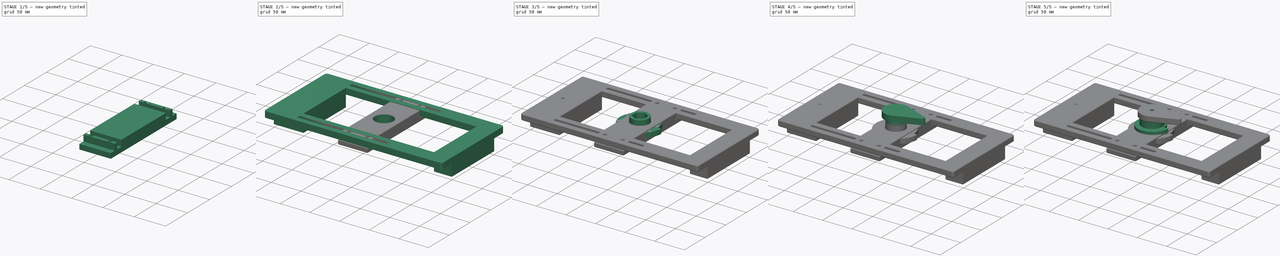
[diagram: build sequence overview — one tinted view per stage of 5, left to right]
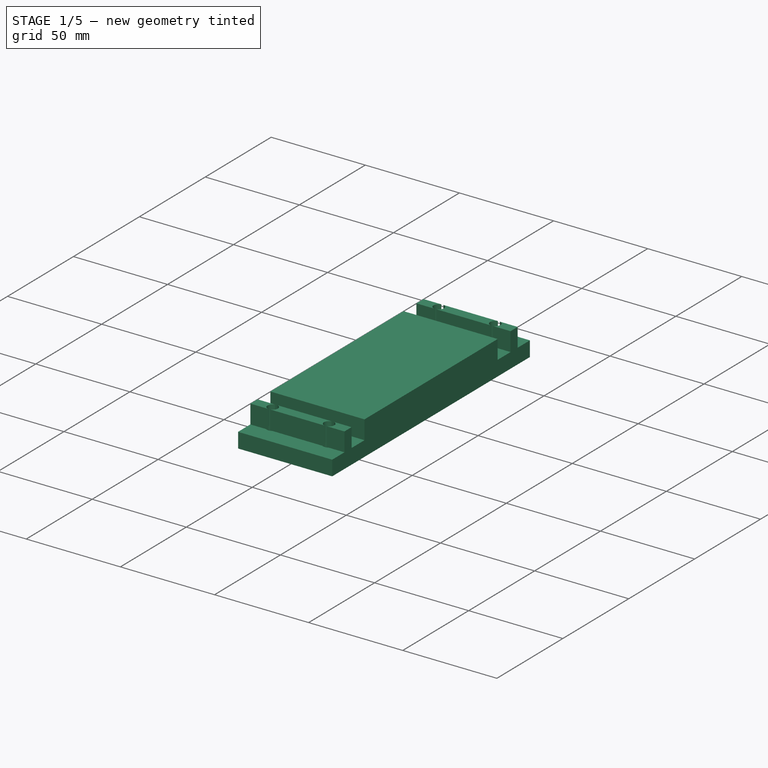
[diagram: stage 1 of 5 — iso view after this stage's code; geometry added in this stage tinted green]
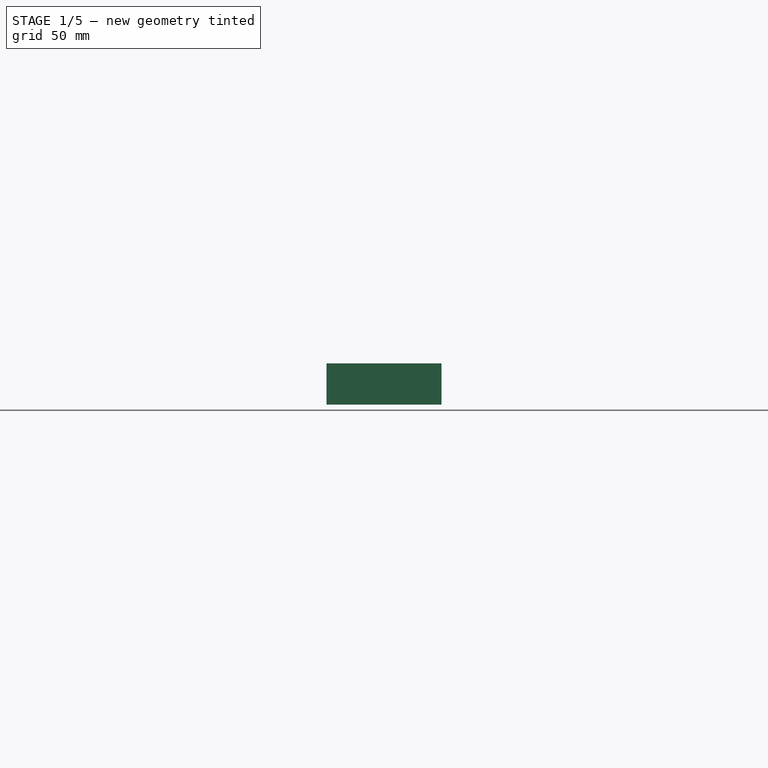
[diagram: stage 1 of 5 — front view after this stage's code; geometry added in this stage tinted green]
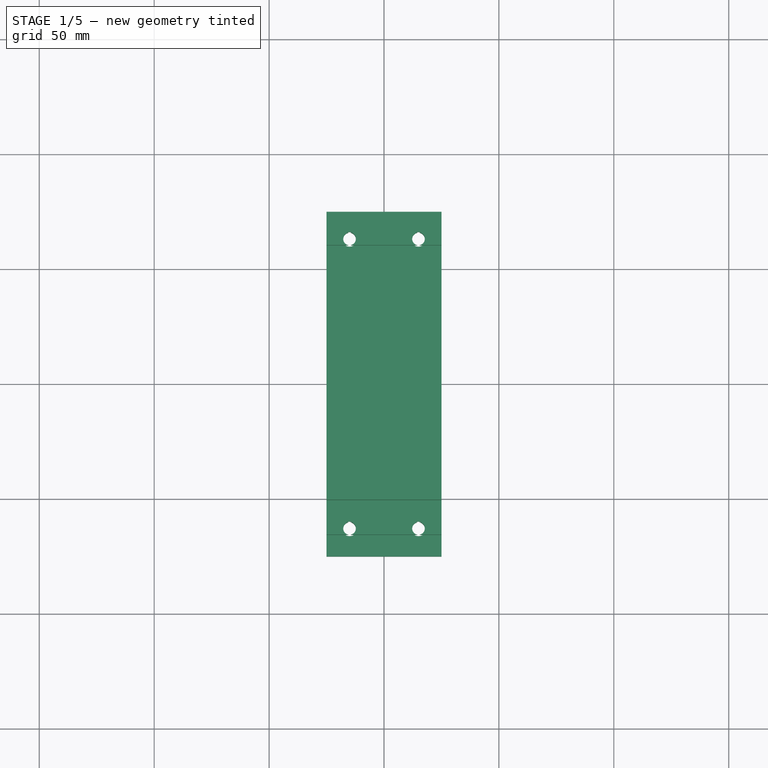
[diagram: stage 1 of 5 — top view after this stage's code; geometry added in this stage tinted green]
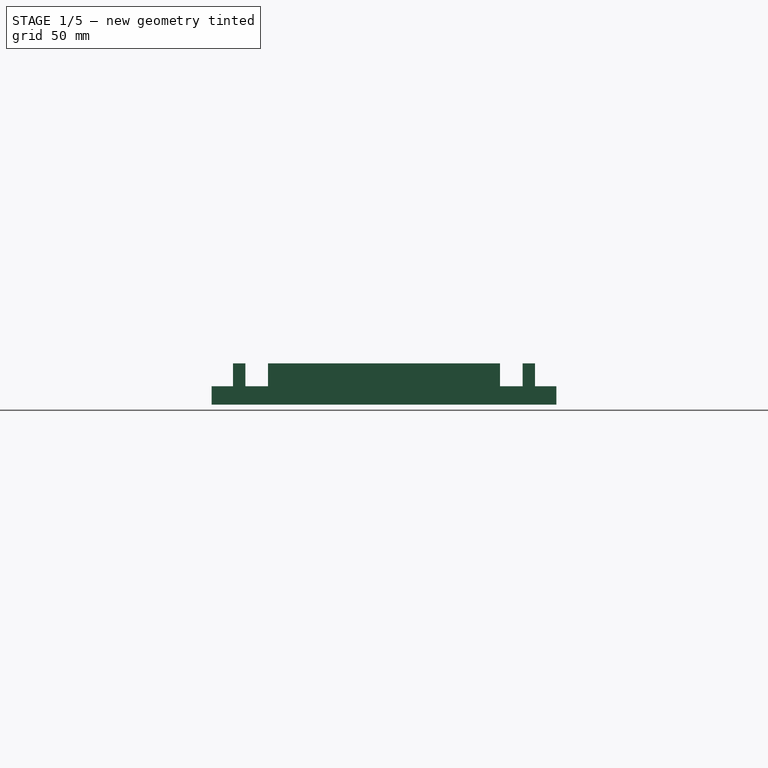
[diagram: stage 1 of 5 — right view after this stage's code; geometry added in this stage tinted green]
FCSTD DOCUMENT  (FreeCAD 0.22R36117 (Git))
Label: cam
License: All rights reserved
LicenseURL: http://en.wikipedia.org/wiki/All_rights_reserved
objects: Sketcher::SketchObject×18, PartDesign::Pad×11, PartDesign::Body×5, PartDesign::Pocket×5, PartDesign::Chamfer×3, PartDesign::Hole×1
note: 63 computed .brp shape members not serialized (recipe doc carries the construction recipe); baked Part::Feature solids carry a one-line shape summary decoded from their .brp

FEATURE [Sketcher::SketchObject] Sketch013
  AttachmentOffset = pos=(0,0,-8) rot=(0,0,1;0rad)
  FullyConstrained = true
  MapMode = 5
  Placement = pos=(0,0,-8) rot=(0,0,1;0rad)
  Support = -> [XY_Plane004]
  sketch-geometry (4):
    g0: LineSegment StartX=-25 StartY=75 StartZ=0 EndX=-25 EndY=-75 EndZ=0
    g1: LineSegment StartX=-25 StartY=-75 StartZ=0 EndX=25 EndY=-75 EndZ=0
    g2: LineSegment StartX=25 StartY=-75 StartZ=0 EndX=25 EndY=75 EndZ=0
    g3: LineSegment StartX=25 StartY=75 StartZ=0 EndX=-25 EndY=75 EndZ=0
  constraints (10):
    c: Coincident(g0,g1)
    c: Coincident(g1,g2)
    c: Coincident(g2,g3)
    c: Coincident(g3,g0)
    c: Vertical(g2)
    c: Horizontal(g1)
    c: Symmetric(g0,g0,g-1)
    c: DistanceY(g0,g0) = 150
    c: DistanceX(g3,g3) = 50
    c: Symmetric(g0,g2,g-2)
FEATURE [PartDesign::Pad] Pad008
  Direction = (0,0,1)
  Length = 8
  Length2 = 10
  Profile = -> Sketch013
  ReferenceAxis = -> Sketch013 [N_Axis]
  Suppressed = false
  Type = 0
FEATURE [Sketcher::SketchObject] Sketch014
  ExternalGeometry = -> [Pad008]
  FullyConstrained = true
  MapMode = 5
  Support = -> [XY_Plane004]
  sketch-geometry (13):
    g0: LineSegment StartX=-25 StartY=65.7 StartZ=0 EndX=-25 EndY=60.3 EndZ=0
    g1: LineSegment StartX=-25 StartY=60.3 StartZ=0 EndX=25 EndY=60.3 EndZ=0
    g2: LineSegment StartX=25 StartY=60.3 StartZ=0 EndX=25 EndY=65.7 EndZ=0
    g3: LineSegment StartX=25 StartY=65.7 StartZ=0 EndX=-25 EndY=65.7 EndZ=0
    g4: LineSegment StartX=-25 StartY=-60.3 StartZ=0 EndX=-25 EndY=-65.7 EndZ=0
    g5: LineSegment StartX=-25 StartY=-65.7 StartZ=0 EndX=25 EndY=-65.7 EndZ=0
    g6: LineSegment StartX=25 StartY=-65.7 StartZ=0 EndX=25 EndY=-60.3 EndZ=0
    g7: LineSegment StartX=25 StartY=-60.3 StartZ=0 EndX=-25 EndY=-60.3 EndZ=0
    g8: LineSegment StartX=-25 StartY=50.5 StartZ=0 EndX=-25 EndY=-50.5 EndZ=0
    g9: LineSegment StartX=-25 StartY=-50.5 StartZ=0 EndX=25 EndY=-50.5 EndZ=0
    g10: LineSegment StartX=25 StartY=-50.5 StartZ=0 EndX=25 EndY=50.5 EndZ=0
    g11: LineSegment StartX=25 StartY=50.5 StartZ=0 EndX=-25 EndY=50.5 EndZ=0
    g12: GeomPoint X=25 Y=-63 Z=0
  constraints (35):
    c: Coincident(g0,g1)
    c: Coincident(g1,g2)
    c: Coincident(g2,g3)
    c: Coincident(g3,g0)
    c: Vertical(g0)
    c: Vertical(g2)
    c: Horizontal(g1)
    c: Horizontal(g3)
    c: Coincident(g4,g5)
    c: Coincident(g5,g6)
    c: Coincident(g6,g7)
    c: Coincident(g7,g4)
    c: Vertical(g4)
    c: Vertical(g6)
    c: Horizontal(g5)
    c: Horizontal(g7)
    c: Equal(g1,g7)
    c: Equal(g6,g2)
    c: Coincident(g8,g9)
    c: Coincident(g9,g10)
    c: Coincident(g10,g11)
    c: Coincident(g11,g8)
    c: Vertical(g8)
    c: Horizontal(g9)
    c: Horizontal(g11)
    c: Vertical(g9,g6)
    c: Vertical(g8,g4)
    c: Symmetric(g6,g1,g-1)
    c: Symmetric(g10,g9,g-1)
    c: DistanceY(g6,g6) = 5.4
    c: Symmetric(g6,g5,g12)
    c: DistanceY(g12,g-1) = 63
    c: DistanceY(g10,g10) = 101
    c: Vertical(g8,g-3)
    c: Vertical(g2,g-4)
FEATURE [PartDesign::Pad] Pad009
  BaseFeature = -> Pad008
  Direction = (0,0,1)
  Length = 10
  Length2 = 10
  Profile = -> Sketch014
  ReferenceAxis = -> Sketch014 [N_Axis]
  Suppressed = false
  Type = 0
FEATURE [Sketcher::SketchObject] Sketch015
  ExternalGeometry = -> [Pad009]
  FullyConstrained = true
  MapMode = 5
  Placement = pos=(0,0,10) rot=(0,0,1;0rad)
  Support = -> [Pad009]
  sketch-geometry (9):
    g0: LineSegment StartX=-15 StartY=63 StartZ=0 EndX=-15 EndY=-63 EndZ=0
    g1: LineSegment StartX=-15 StartY=-63 StartZ=0 EndX=15 EndY=-63 EndZ=0
    g2: LineSegment StartX=15 StartY=-63 StartZ=0 EndX=15 EndY=63 EndZ=0
    g3: LineSegment StartX=15 StartY=63 StartZ=0 EndX=-15 EndY=63 EndZ=0
    g4: GeomPoint X=25 Y=63 Z=0
    g5: Circle CenterX=-15 CenterY=63 CenterZ=0 NormalX=0 NormalY=0 NormalZ=1 AngleXU=0 Radius=2.75
    g6: Circle CenterX=15 CenterY=63 CenterZ=0 NormalX=0 NormalY=0 NormalZ=1 AngleXU=0 Radius=2.75
    g7: Circle CenterX=-15 CenterY=-63 CenterZ=0 NormalX=0 NormalY=0 NormalZ=1 AngleXU=0 Radius=2.75
    g8: Circle CenterX=15 CenterY=-63 CenterZ=0 NormalX=0 NormalY=0 NormalZ=1 AngleXU=0 Radius=2.75
  constraints (20):
    c: Coincident(g0,g1)
    c: Coincident(g1,g2)
    c: Coincident(g2,g3)
    c: Coincident(g3,g0)
    c: Vertical(g0)
    c: Horizontal(g1)
    c: Horizontal(g3)
    c: Symmetric(g1,g2,g-1)
    c: Symmetric(g-5,g-4,g4)
    c: Horizontal(g2,g4)
    c: DistanceX(g2,g-5) = 10
    c: DistanceX(g-4,g0) = 10
    c: Equal(g5,g6)
    c: Equal(g5,g7)
    c: Equal(g5,g8)
    c: Diameter(g5) = 5.5
    c: Coincident(g5,g0)
    c: Coincident(g6,g2)
    c: Coincident(g8,g1)
    c: Coincident(g7,g0)
FEATURE [PartDesign::Pocket] Pocket003
  BaseFeature = -> Pad009
  Direction = (0,0,-1)
  Length = 5
  Length2 = 5
  Profile = -> Sketch015
  ReferenceAxis = -> Sketch015 [N_Axis]
  Suppressed = false
  Type = 1
FEATURE [Sketcher::SketchObject] Sketch016
  ExternalGeometry = -> [Pocket003]
  FullyConstrained = true
  MapMode = 5
  Placement = pos=(0,0,-8) rot=(1,0,0;3.14159rad)
  Support = -> [Pocket003]
  sketch-geometry (4):
    g0: Circle CenterX=-15 CenterY=-63 CenterZ=0 NormalX=0 NormalY=0 NormalZ=1 AngleXU=0 Radius=3.2
    g1: Circle CenterX=15 CenterY=-63 CenterZ=0 NormalX=0 NormalY=0 NormalZ=1 AngleXU=0 Radius=3.2
    g2: Circle CenterX=15 CenterY=63 CenterZ=0 NormalX=0 NormalY=0 NormalZ=1 AngleXU=0 Radius=3.2
    g3: Circle CenterX=-15 CenterY=63 CenterZ=0 NormalX=0 NormalY=0 NormalZ=1 AngleXU=0 Radius=3.2
  constraints (12):
    c: Coincident(g0,g-6)
    c: Coincident(g1,g-5)
    c: Coincident(g2,g-4)
    c: Coincident(g3,g-3)
    c: Diameter(g-6) = 5.5
    c: Diameter(g-5) = 5.5
    c: Diameter(g-4) = 5.5
    c: Diameter(g-3) = 5.5
    c: Equal(g0,g1)
    c: Equal(g0,g2)
    c: Equal(g0,g3)
    c: Diameter(g0) = 6.4
FEATURE [PartDesign::Pocket] Pocket004
  BaseFeature = -> Pocket003
  Direction = (0,0,1)
  Length = 0
  Length2 = 5
  Profile = -> Sketch016
  ReferenceAxis = -> Sketch016 [N_Axis]
  Suppressed = false
  Type = 3
  UpToFace = -> Pocket003 [Face5]
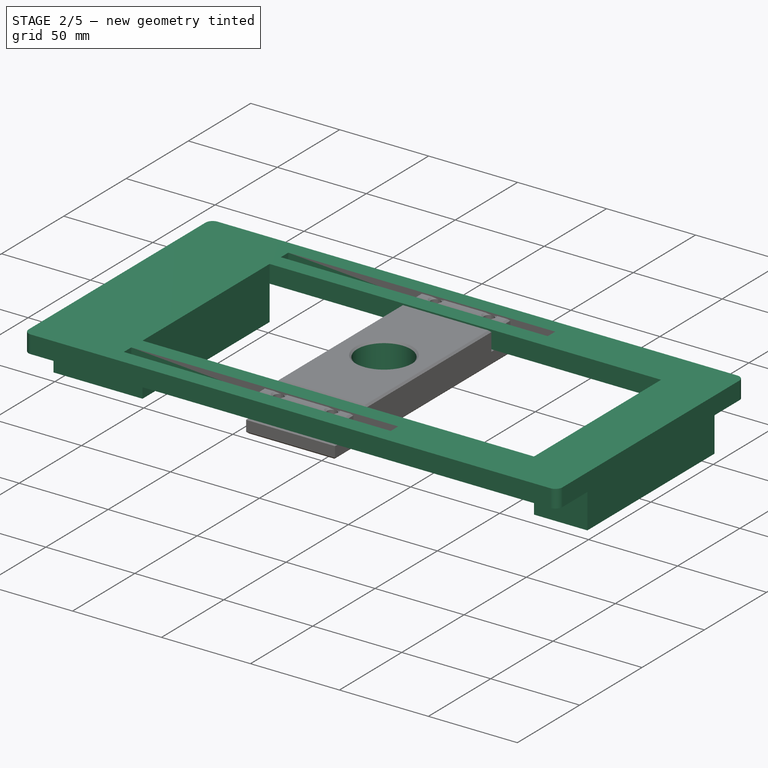
[diagram: stage 2 of 5 — iso view after this stage's code; geometry added in this stage tinted green]
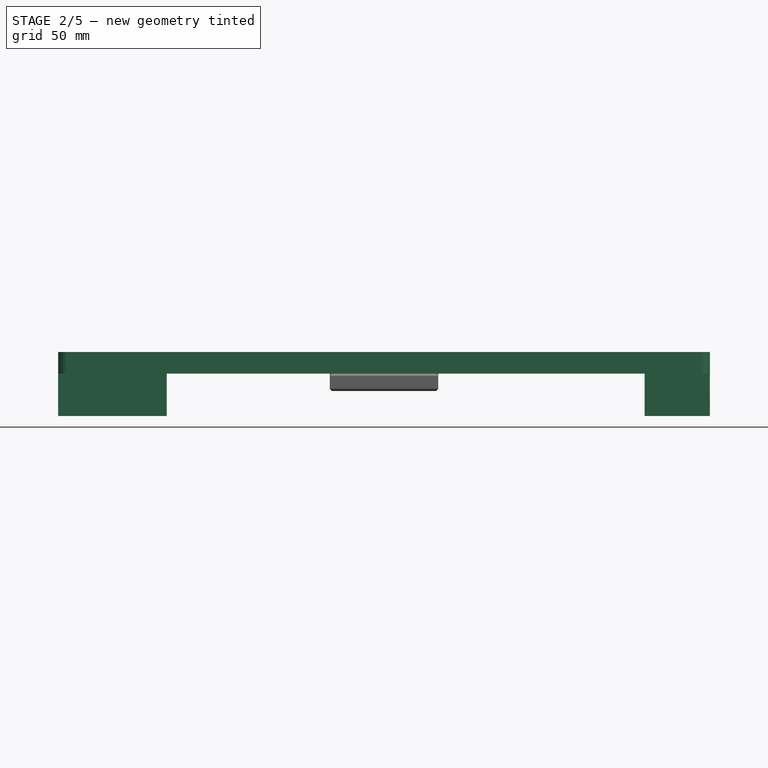
[diagram: stage 2 of 5 — front view after this stage's code; geometry added in this stage tinted green]
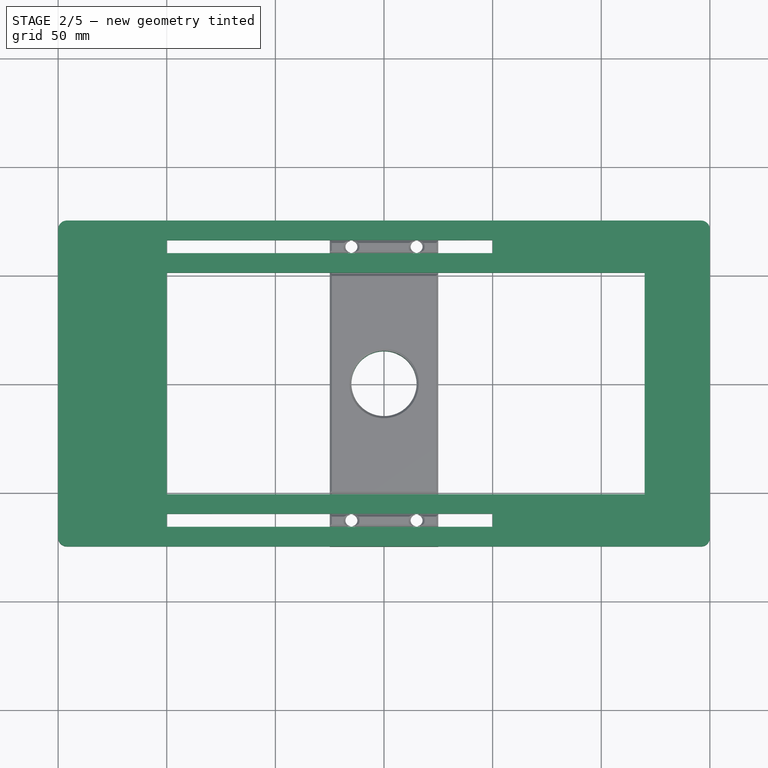
[diagram: stage 2 of 5 — top view after this stage's code; geometry added in this stage tinted green]
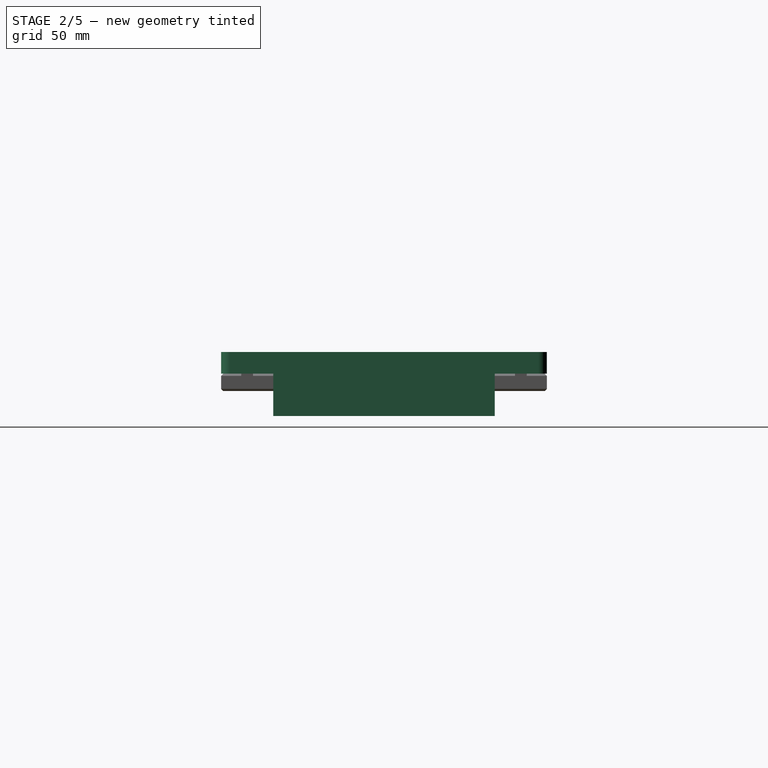
[diagram: stage 2 of 5 — right view after this stage's code; geometry added in this stage tinted green]
FEATURE [PartDesign::Body] Body002  label="lever"
  Group = -> [Sketch006,Pad003,Sketch007,Pad004,Sketch008,Pad005,Sketch009,Pocket002,Chamfer]
  Origin = -> Origin002
  Tip = -> Chamfer
FEATURE [Sketcher::SketchObject] Sketch010
  FullyConstrained = true
  MapMode = 5
  Support = -> [XY_Plane003]
  sketch-geometry (26):
    g0: LineSegment StartX=-150 StartY=71 StartZ=0 EndX=-150 EndY=-71 EndZ=0
    g1: LineSegment StartX=-146 StartY=-75 StartZ=0 EndX=146 EndY=-75 EndZ=0
    g2: LineSegment StartX=150 StartY=-71 StartZ=0 EndX=150 EndY=71 EndZ=0
    g3: LineSegment StartX=146 StartY=75 StartZ=0 EndX=-146 EndY=75 EndZ=0
    g4: ArcOfCircle CenterX=-146 CenterY=71 CenterZ=0 NormalX=0 NormalY=0 NormalZ=1 AngleXU=0 Radius=4 StartAngle=1.5708 EndAngle=3.14159
    g5: GeomPoint X=-150 Y=75 Z=0
    g6: ArcOfCircle CenterX=-146 CenterY=-71 CenterZ=0 NormalX=0 NormalY=0 NormalZ=1 AngleXU=0 Radius=4 StartAngle=3.14159 EndAngle=4.71239
    g7: GeomPoint X=-150 Y=-75 Z=0
    g8: ArcOfCircle CenterX=146 CenterY=-71 CenterZ=0 NormalX=0 NormalY=0 NormalZ=1 AngleXU=0 Radius=4 StartAngle=4.71239 EndAngle=6.28319
    g9: GeomPoint X=150 Y=-75 Z=0
    g10: ArcOfCircle CenterX=146 CenterY=71 CenterZ=0 NormalX=0 NormalY=0 NormalZ=1 AngleXU=0 Radius=4 StartAngle=1e-16 EndAngle=1.5708
    g11: GeomPoint X=150 Y=75 Z=0
    g12: LineSegment StartX=-100 StartY=51 StartZ=0 EndX=-100 EndY=-51 EndZ=0
    g13: LineSegment StartX=-100 StartY=-51 StartZ=0 EndX=120 EndY=-51 EndZ=0
    g14: LineSegment StartX=120 StartY=-51 StartZ=0 EndX=120 EndY=51 EndZ=0
    g15: LineSegment StartX=120 StartY=51 StartZ=0 EndX=-100 EndY=51 EndZ=0
    g16: LineSegment StartX=-100 StartY=66 StartZ=0 EndX=-100 EndY=60 EndZ=0
    g17: LineSegment StartX=-100 StartY=60 StartZ=0 EndX=50 EndY=60 EndZ=0
    g18: LineSegment StartX=50 StartY=60 StartZ=0 EndX=50 EndY=66 EndZ=0
    g19: LineSegment StartX=50 StartY=66 StartZ=0 EndX=-100 EndY=66 EndZ=0
    g20: LineSegment StartX=-100 StartY=-60 StartZ=0 EndX=-100 EndY=-66 EndZ=0
    g21: LineSegment StartX=-100 StartY=-66 StartZ=0 EndX=50 EndY=-66 EndZ=0
    g22: LineSegment StartX=50 StartY=-66 StartZ=0 EndX=50 EndY=-60 EndZ=0
    g23: LineSegment StartX=50 StartY=-60 StartZ=0 EndX=-100 EndY=-60 EndZ=0
    g24: GeomPoint X=-100 Y=-75 Z=0
    g25: GeomPoint X=-100 Y=-63 Z=0
  constraints (63):
    c: Vertical(g0)
    c: Vertical(g2)
    c: Horizontal(g1)
    c: Horizontal(g3)
    c: DistanceX(g5,g11) = 300
    c: DistanceY(g9,g11) = 150
    c: Symmetric(g7,g11,g-1)
    c: PointOnObject(g5,g3)
    c: PointOnObject(g5,g0)
    c: Tangent(g3,g4) = -1.5708
    c: Tangent(g0,g4) = -1.5708
    c: PointOnObject(g7,g0)
    c: PointOnObject(g7,g1)
    c: Tangent(g0,g6) = -1.5708
    c: Tangent(g1,g6) = -1.5708
    c: PointOnObject(g9,g1)
    c: PointOnObject(g9,g2)
    c: Tangent(g1,g8) = -1.5708
    c: Tangent(g2,g8) = -1.5708
    c: PointOnObject(g11,g2)
    c: PointOnObject(g11,g3)
    c: Tangent(g2,g10) = -1.5708
    c: Tangent(g3,g10) = -1.5708
    c: Equal(g4,g6)
    c: Equal(g4,g8)
    c: Equal(g4,g10)
    c: Radius(g4) = 4
    c: Coincident(g12,g13)
    c: Coincident(g13,g14)
    c: Coincident(g14,g15)
    c: Coincident(g15,g12)
    c: Vertical(g14)
    c: Horizontal(g13)
    c: Horizontal(g15)
    c: Symmetric(g12,g12,g-1)
    c: DistanceX(g14,g2) = 30
    c: DistanceX(g7,g12) = 50
    c: DistanceY(g1,g12) = 24
    c: Coincident(g16,g17)
    c: Coincident(g17,g18)
    c: Coincident(g18,g19)
    c: Coincident(g19,g16)
    c: Vertical(g16)
    c: Vertical(g18)
    c: Horizontal(g17)
    c: Horizontal(g19)
    c: Coincident(g20,g21)
    c: Coincident(g21,g22)
    c: Coincident(g22,g23)
    c: Coincident(g23,g20)
    c: Vertical(g20)
    c: Vertical(g22)
    c: Horizontal(g21)
    c: Horizontal(g23)
    c: DistanceY(g22,g22) = 6
    c: Equal(g23,g17)
    c: Symmetric(g22,g17,g-1)
    c: Vertical(g20,g12)
    c: PointOnObject(g24,g1)
    c: DistanceX(g21,g21) = 150
    c: Symmetric(g20,g20,g25)
    c: Symmetric(g24,g12,g25)
    c: Equal(g18,g22)
FEATURE [PartDesign::Pad] Pad006
  Direction = (0,0,1)
  Length = 10
  Length2 = 10
  Profile = -> Sketch010
  ReferenceAxis = -> Sketch010 [N_Axis]
  Suppressed = false
  Type = 0
FEATURE [Sketcher::SketchObject] Sketch012
  ExternalGeometry = -> [Pad006]
  FullyConstrained = true
  MapMode = 5
  Placement = pos=(0,0,0) rot=(1,0,0;3.14159rad)
  Support = -> [Pad006]
  sketch-geometry (8):
    g0: LineSegment StartX=120 StartY=51 StartZ=0 EndX=120 EndY=-51 EndZ=0
    g1: LineSegment StartX=120 StartY=-51 StartZ=0 EndX=150 EndY=-51 EndZ=0
    g2: LineSegment StartX=150 StartY=-51 StartZ=0 EndX=150 EndY=51 EndZ=0
    g3: LineSegment StartX=150 StartY=51 StartZ=0 EndX=120 EndY=51 EndZ=0
    g4: LineSegment StartX=-150 StartY=51 StartZ=0 EndX=-150 EndY=-51 EndZ=0
    g5: LineSegment StartX=-150 StartY=-51 StartZ=0 EndX=-100 EndY=-51 EndZ=0
    g6: LineSegment StartX=-100 StartY=-51 StartZ=0 EndX=-100 EndY=51 EndZ=0
    g7: LineSegment StartX=-100 StartY=51 StartZ=0 EndX=-150 EndY=51 EndZ=0
  constraints (20):
    c: Coincident(g0,g1)
    c: Coincident(g1,g2)
    c: Coincident(g2,g3)
    c: Coincident(g3,g0)
    c: Vertical(g2)
    c: Horizontal(g1)
    c: Horizontal(g3)
    c: Coincident(g4,g5)
    c: Coincident(g5,g6)
    c: Coincident(g6,g7)
    c: Coincident(g7,g4)
    c: Vertical(g4)
    c: Horizontal(g5)
    c: Horizontal(g7)
    c: Coincident(g-3,g0)
    c: Coincident(g0,g-3)
    c: Vertical(g1,g-4)
    c: Coincident(g5,g-5)
    c: Coincident(g6,g-5)
    c: Vertical(g4,g-6)
FEATURE [PartDesign::Pad] Pad007
  BaseFeature = -> Pad006
  Direction = (0,0,-1)
  Length = 19.5
  Length2 = 10
  Profile = -> Sketch012
  ReferenceAxis = -> Sketch012 [N_Axis]
  Refine = true
  Suppressed = false
  Type = 0
FEATURE [Sketcher::SketchObject] Sketch017
  ExternalGeometry = -> [Pocket004]
  FullyConstrained = true
  MapMode = 5
  Placement = pos=(0,0,10) rot=(0,0,1;0rad)
  Support = -> [Pocket004]
  sketch-geometry (1):
    g0: Circle CenterX=0 CenterY=0 CenterZ=0 NormalX=0 NormalY=0 NormalZ=1 AngleXU=0 Radius=15
  constraints (2):
    c: Diameter(g0) = 30
    c: Coincident(g-1,g0)
FEATURE [PartDesign::Pocket] Pocket005
  BaseFeature = -> Pocket004
  Direction = (0,0,-1)
  Length = 5
  Length2 = 5
  Profile = -> Sketch017
  ReferenceAxis = -> Sketch017 [N_Axis]
  Suppressed = false
  Type = 1
FEATURE [PartDesign::Body] Body003  label="base"
  Group = -> [Sketch010,Pad006,Sketch012,Pad007,Chamfer001,Sketch,Hole]
  Origin = -> Origin003
  Tip = -> Hole
FEATURE [PartDesign::Chamfer] Chamfer002
  Angle = 45
  Base = -> Pocket005 [Face27,Face47,Face49,Face22,Face55,Face57,Face32,Edge16,Edge43,Edge57,Edge10,Edge8,Edge6,Edge37,Edge28,Edge13,Edge4,Face4]
  BaseFeature = -> Pocket005
  ChamferType = 0
  FlipDirection = false
  Size = 1
  Size2 = 1
  SupportTransform = false
  Suppressed = false
  UseAllEdges = false
FEATURE [PartDesign::Body] Body004  label="carrier"
  Group = -> [Sketch013,Pad008,Sketch014,Pad009,Sketch015,Pocket003,Sketch016,Pocket004,Sketch017,Pocket005,Chamfer002]
  Origin = -> Origin004
  Tip = -> Chamfer002
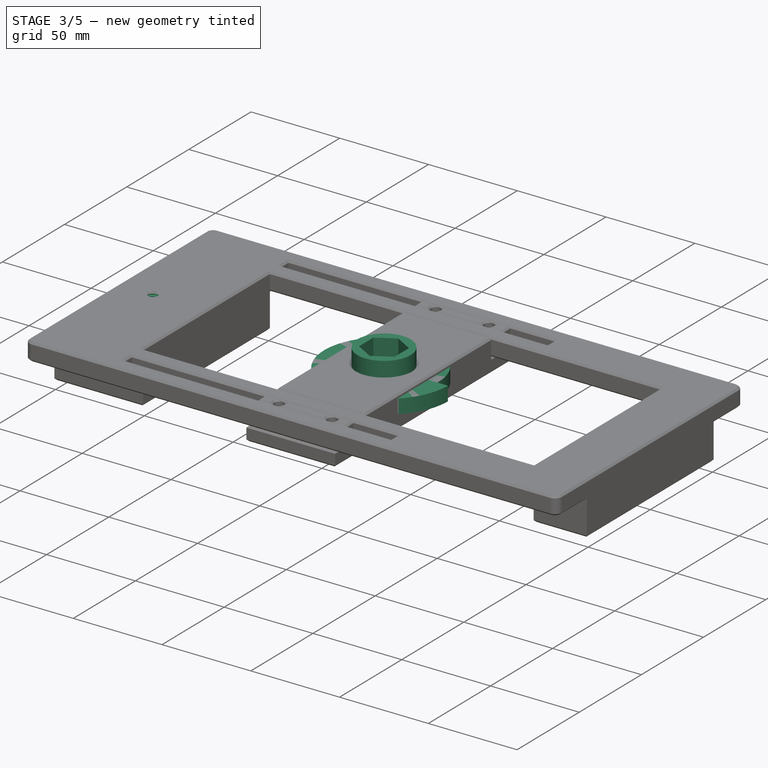
[diagram: stage 3 of 5 — iso view after this stage's code; geometry added in this stage tinted green]
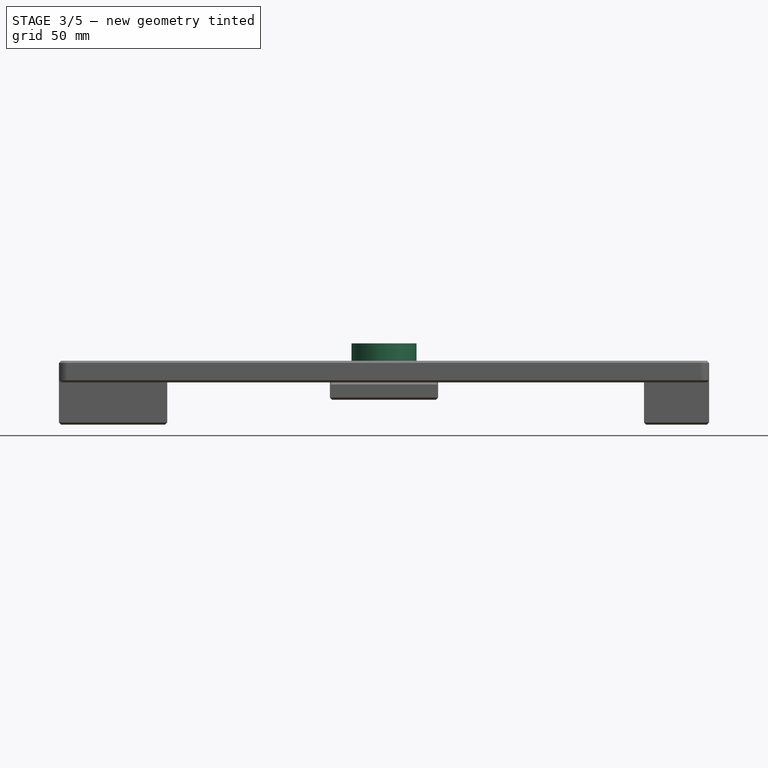
[diagram: stage 3 of 5 — front view after this stage's code; geometry added in this stage tinted green]
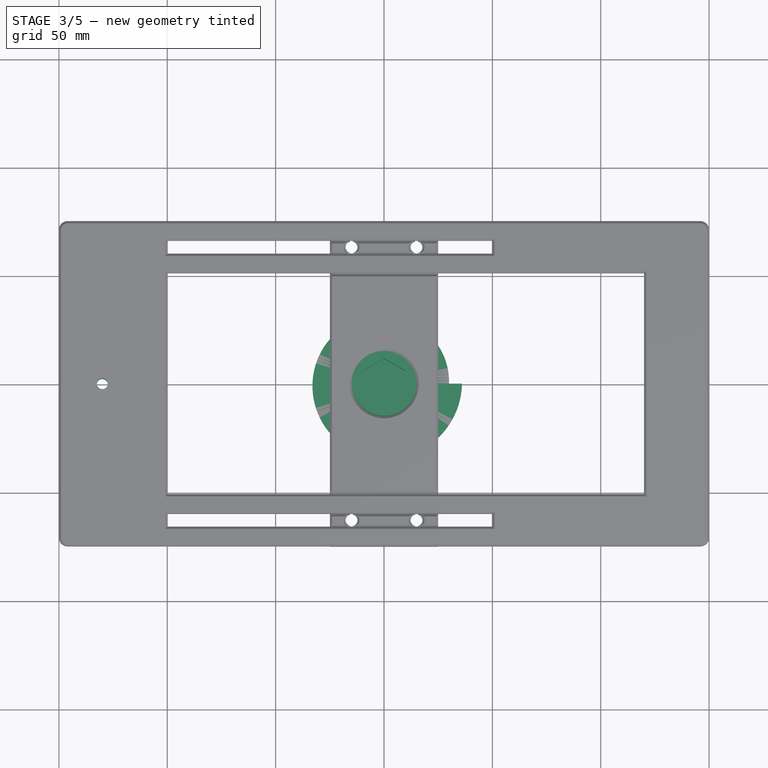
[diagram: stage 3 of 5 — top view after this stage's code; geometry added in this stage tinted green]
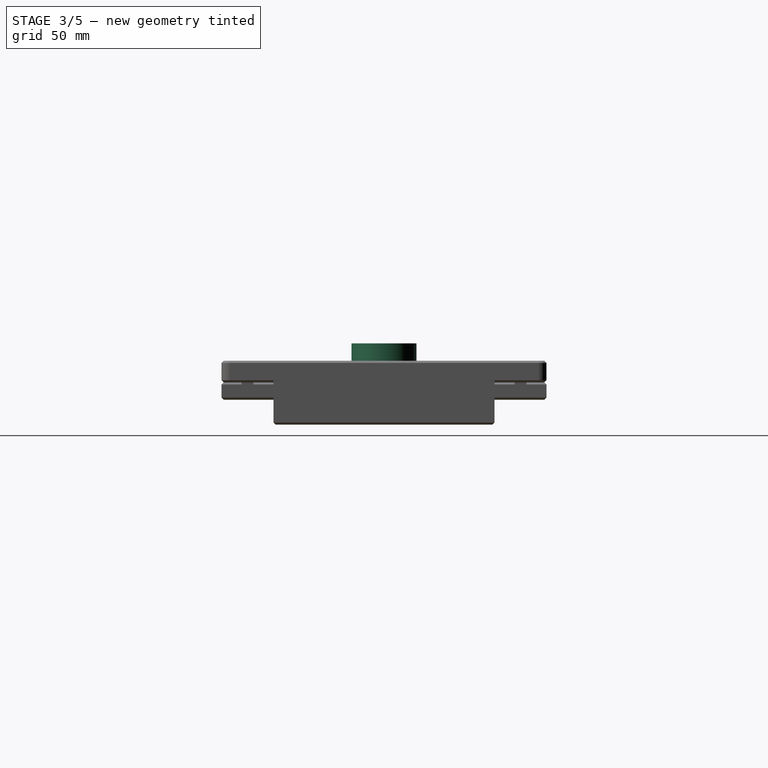
[diagram: stage 3 of 5 — right view after this stage's code; geometry added in this stage tinted green]
FEATURE [Sketcher::SketchObject] Sketch018
  FullyConstrained = false
  sketch-geometry (2):
    g0: BSplineCurve PolesCount=22 KnotsCount=3 Degree=11 IsPeriodic=0
    g1: LineSegment StartX=36 StartY=0 StartZ=0 EndX=30 EndY=0 EndZ=0
  constraints (3):
    c: Coincident(g1,g0)
    c: Coincident(g1,g0)
    c: Horizontal(g1)
FEATURE [PartDesign::Pad] Pad
  Direction = (0,0,1)
  Length = 8
  Length2 = 10
  Profile = -> Sketch018
  ReferenceAxis = -> Sketch018 [N_Axis]
  Suppressed = false
  Type = 0
FEATURE [Sketcher::SketchObject] Sketch019
  FullyConstrained = true
  MapMode = 5
  Placement = pos=(0,0,8) rot=(0,0,1;0rad)
  Support = -> [Pad]
  sketch-geometry (8):
    g0: LineSegment StartX=0 StartY=-11.547 StartZ=0 EndX=10 EndY=-5.7735 EndZ=0
    g1: LineSegment StartX=10 StartY=-5.7735 StartZ=0 EndX=10 EndY=5.7735 EndZ=0
    g2: LineSegment StartX=10 StartY=5.7735 StartZ=0 EndX=2.8824e-12 EndY=11.547 EndZ=0
    g3: LineSegment StartX=2.8827e-12 StartY=11.547 StartZ=0 EndX=-10 EndY=5.7735 EndZ=0
    g4: LineSegment StartX=-10 StartY=5.7735 StartZ=0 EndX=-10 EndY=-5.7735 EndZ=0
    g5: LineSegment StartX=-10 StartY=-5.7735 StartZ=0 EndX=0 EndY=-11.547 EndZ=0
    g6: Circle CenterX=0 CenterY=0 CenterZ=0 NormalX=0 NormalY=0 NormalZ=1 AngleXU=0 Radius=11.547
    g7: Circle CenterX=0 CenterY=0 CenterZ=0 NormalX=0 NormalY=0 NormalZ=1 AngleXU=0 Radius=15
  constraints (18):
    c: Coincident(g0,g1)
    c: Coincident(g1,g2)
    c: Coincident(g2,g3)
    c: Coincident(g3,g4)
    c: Coincident(g4,g5)
    c: Coincident(g5,g0)
    c: Equal(g0, g1-g5) x5
    c: PointOnObject(g0,g6)
    c: PointOnObject(g1,g6)
    c: PointOnObject(g2,g6)
    c: PointOnObject(g3,g6)
    c: PointOnObject(g4,g6)
    c: PointOnObject(g5,g6)
    c: PointOnObject(g5,g-2)
    c: DistanceX(g4,g0) = 20
    c: Coincident(g7,g6)
    c: Diameter(g7) = 30
    c: Coincident(g7,g-1)
FEATURE [PartDesign::Pad] Pad010
  BaseFeature = -> Pad
  Direction = (0,0,1)
  Length = 10
  Length2 = 10
  Profile = -> Sketch019
  ReferenceAxis = -> Sketch019 [N_Axis]
  Suppressed = false
  Type = 0
FEATURE [PartDesign::Body] Body005  label="cam"
  Group = -> [Sketch018,Pad,Sketch019,Pad010,Sketch020,Pocket]
  Origin = -> Origin005
  Placement = pos=(0,0,-16) rot=(0,0,1;0rad)
  Tip = -> Pocket
FEATURE [PartDesign::Chamfer] Chamfer001
  Angle = 45
  Base = -> Pad007 [Edge14,Edge12,Edge13,Edge15,Edge48,Edge46,Edge47,Edge45,Face17,Face25,Edge10,Edge38,Edge6,Edge42,Face3]
  BaseFeature = -> Pad007
  ChamferType = 0
  FlipDirection = false
  Size = 1
  Size2 = 1
  SupportTransform = false
  Suppressed = false
  UseAllEdges = false
FEATURE [Sketcher::SketchObject] Sketch
  ExternalGeometry = -> [Chamfer001]
  FullyConstrained = true
  MapMode = 5
  Placement = pos=(0,0,10) rot=(0,0,1;0rad)
  Support = -> [Chamfer001]
  sketch-geometry (1):
    g0: Circle CenterX=-130 CenterY=0 CenterZ=0 NormalX=0 NormalY=0 NormalZ=1 AngleXU=0 Radius=3
  constraints (3):
    c: PointOnObject(g0,g-1)
    c: Diameter(g0) = 6
    c: DistanceX(g0,g-1) = 130
FEATURE [PartDesign::Hole] Hole
  BaseFeature = -> Chamfer001
  CustomThreadClearance = 0
  Depth = 680.144
  DepthType = 1
  Diameter = 5.1
  DrillForDepth = false
  DrillPoint = 1
  DrillPointAngle = 118
  HoleCutCountersinkAngle = 90
  HoleCutCustomValues = false
  HoleCutDepth = 0
  HoleCutDiameter = 6.1
  HoleCutType = 0
  ModelThread = true
  Profile = -> Sketch
  Suppressed = false
  Tapered = false
  TaperedAngle = 90
  ThreadClass = 0
  ThreadDepth = 680.144
  ThreadDepthType = 0
  ThreadDirection = 0
  ThreadFit = 0
  ThreadSize = 9
  ThreadType = 3
  Threaded = true
  UseCustomThreadClearance = false
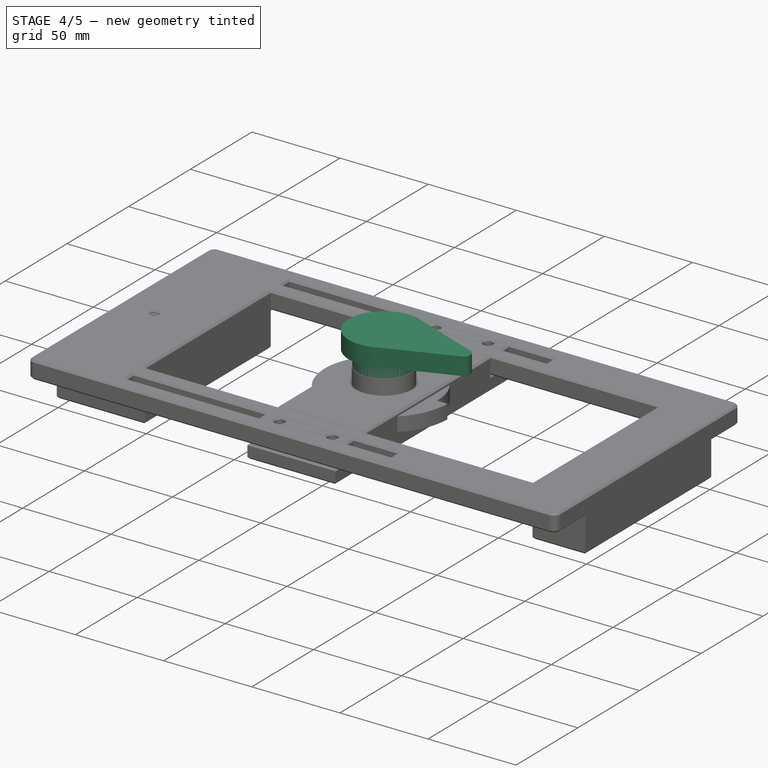
[diagram: stage 4 of 5 — iso view after this stage's code; geometry added in this stage tinted green]
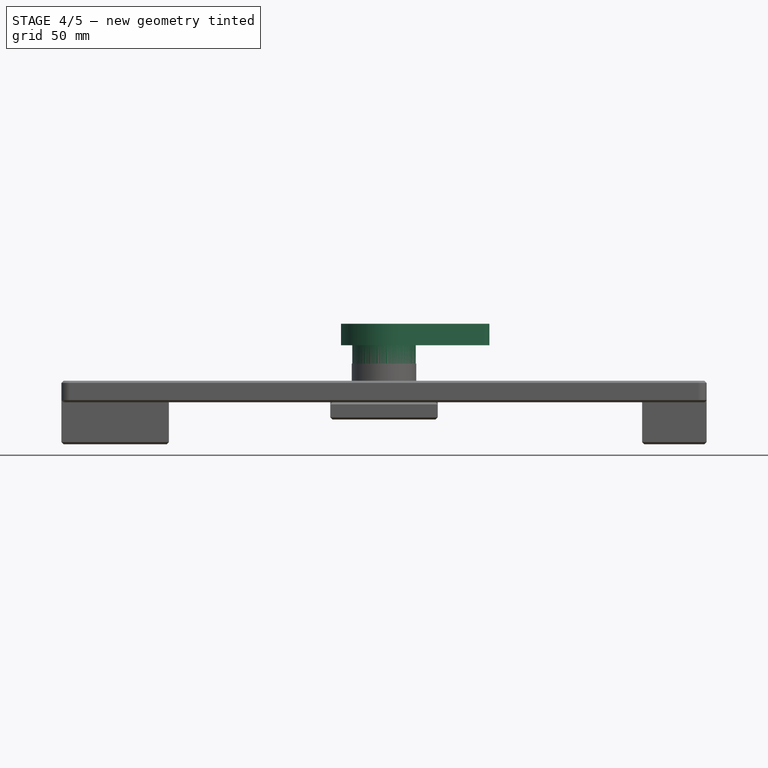
[diagram: stage 4 of 5 — front view after this stage's code; geometry added in this stage tinted green]
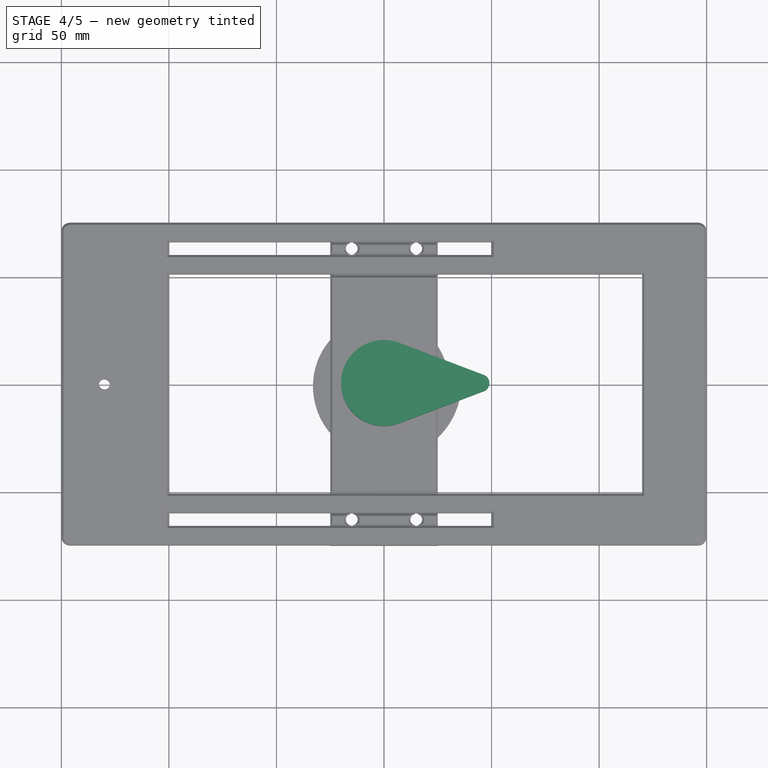
[diagram: stage 4 of 5 — top view after this stage's code; geometry added in this stage tinted green]
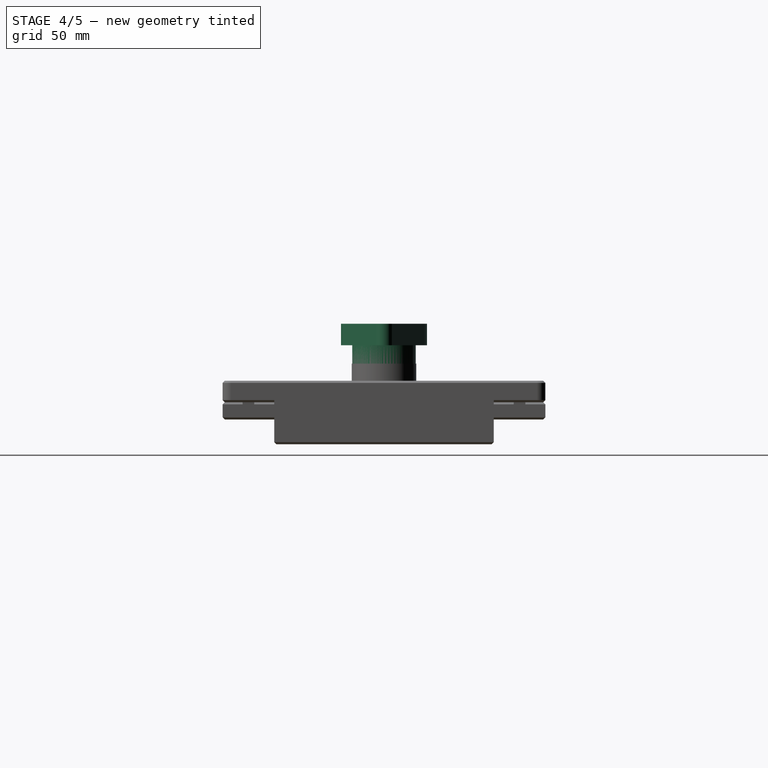
[diagram: stage 4 of 5 — right view after this stage's code; geometry added in this stage tinted green]
FEATURE [Sketcher::SketchObject] Sketch003
  FullyConstrained = true
  MapMode = 5
  Placement = pos=(0,0,33.5) rot=(0,0,1;0rad)
  Support = -> [Pad002]
  sketch-geometry (2):
    g0: Circle CenterX=-10 CenterY=0 CenterZ=0 NormalX=0 NormalY=0 NormalZ=1 AngleXU=0 Radius=3.2
    g1: Circle CenterX=10 CenterY=0 CenterZ=0 NormalX=0 NormalY=0 NormalZ=1 AngleXU=0 Radius=3.2
  constraints (5):
    c: PointOnObject(g0,g-1)
    c: Symmetric(g0,g1,g-2)
    c: Diameter(g1) = 6.4
    c: Equal(g1,g0)
    c: DistanceX(g0,g1) = 20
FEATURE [PartDesign::Body] Body001
  Group = -> [Sketch001,Pad001,Sketch002,Pad002,Sketch003]
  Origin = -> Origin001
  Tip = -> Pad002
FEATURE [Sketcher::SketchObject] Sketch006
  FullyConstrained = true
  MapMode = 5
  Support = -> [XY_Plane002]
  sketch-geometry (7):
    g0: LineSegment StartX=0 StartY=-11.2583 StartZ=0 EndX=9.75 EndY=-5.62917 EndZ=0
    g1: LineSegment StartX=9.75 StartY=-5.62917 StartZ=0 EndX=9.75 EndY=5.62917 EndZ=0
    g2: LineSegment StartX=9.75 StartY=5.62917 StartZ=0 EndX=1.3e-15 EndY=11.2583 EndZ=0
    g3: LineSegment StartX=1.3e-15 StartY=11.2583 StartZ=0 EndX=-9.75 EndY=5.62917 EndZ=0
    g4: LineSegment StartX=-9.75 StartY=5.62917 StartZ=0 EndX=-9.75 EndY=-5.62917 EndZ=0
    g5: LineSegment StartX=-9.75 StartY=-5.62917 StartZ=0 EndX=2e-16 EndY=-11.2583 EndZ=0
    g6: Circle CenterX=0 CenterY=0 CenterZ=0 NormalX=0 NormalY=0 NormalZ=1 AngleXU=0 Radius=11.2583
  constraints (16):
    c: Coincident(g0,g1)
    c: Coincident(g1,g2)
    c: Coincident(g2,g3)
    c: Coincident(g3,g4)
    c: Coincident(g4,g5)
    c: Coincident(g5,g0)
    c: Equal(g0, g1-g5) x5
    c: PointOnObject(g0,g6)
    c: PointOnObject(g1,g6)
    c: PointOnObject(g2,g6)
    c: PointOnObject(g3,g6)
    c: PointOnObject(g4,g6)
    c: PointOnObject(g5,g6)
    c: Coincident(g6,g-1)
    c: PointOnObject(g5,g-2)
    c: DistanceX(g4,g0) = 19.5
FEATURE [PartDesign::Pad] Pad003
  Direction = (0,0,1)
  Length = 8
  Length2 = 10
  Profile = -> Sketch006
  ReferenceAxis = -> Sketch006 [N_Axis]
  Suppressed = false
  Type = 0
FEATURE [Sketcher::SketchObject] Sketch007
  FullyConstrained = true
  MapMode = 5
  Placement = pos=(0,0,8) rot=(0,0,1;0rad)
  Support = -> [Pad003]
  sketch-geometry (1):
    g0: Circle CenterX=0 CenterY=0 CenterZ=0 NormalX=0 NormalY=0 NormalZ=1 AngleXU=0 Radius=14.75
  constraints (2):
    c: Diameter(g0) = 29.5
    c: Coincident(g0,g-1)
FEATURE [PartDesign::Pad] Pad004
  BaseFeature = -> Pad003
  Direction = (0,0,1)
  Length = 18.5
  Length2 = 10
  Profile = -> Sketch007
  ReferenceAxis = -> Sketch007 [N_Axis]
  Suppressed = false
  Type = 0
FEATURE [Sketcher::SketchObject] Sketch008
  FullyConstrained = true
  MapMode = 5
  Placement = pos=(0,0,26.5) rot=(0,0,1;0rad)
  Support = -> [Pad004]
  sketch-geometry (4):
    g0: ArcOfCircle CenterX=0 CenterY=0 CenterZ=0 NormalX=0 NormalY=0 NormalZ=1 AngleXU=0 Radius=20 StartAngle=1.20729 EndAngle=5.0759
    g1: ArcOfCircle CenterX=45 CenterY=0 CenterZ=0 NormalX=0 NormalY=0 NormalZ=1 AngleXU=0 Radius=4 StartAngle=5.0759 EndAngle=7.49047
    g2: LineSegment StartX=46.4222 StartY=3.73862 StartZ=0 EndX=7.11111 EndY=18.6931 EndZ=0
    g3: LineSegment StartX=46.4222 StartY=-3.73862 StartZ=0 EndX=7.11111 EndY=-18.6931 EndZ=0
  constraints (9):
    c: Coincident(g0,g-1)
    c: PointOnObject(g1,g-1)
    c: Tangent(g2,g0) = -1.5708
    c: Tangent(g3,g0) = 1.5708
    c: Tangent(g3,g1) = 1.5708
    c: Tangent(g2,g1) = -1.5708
    c: Diameter(g0) = 40
    c: DistanceX(g0,g1) = 45
    c: Diameter(g1) = 8
FEATURE [PartDesign::Pad] Pad005
  BaseFeature = -> Pad004
  Direction = (0,0,1)
  Length = 10
  Length2 = 10
  Profile = -> Sketch008
  ReferenceAxis = -> Sketch008 [N_Axis]
  Suppressed = false
  Type = 0
FEATURE [Sketcher::SketchObject] Sketch020
  FullyConstrained = true
  MapMode = 5
  Placement = pos=(0,0,0) rot=(1,0,0;3.14159rad)
  Support = -> [Pad010]
  sketch-geometry (1):
    g0: Circle CenterX=0 CenterY=0 CenterZ=0 NormalX=0 NormalY=0 NormalZ=1 AngleXU=0 Radius=3.2
  constraints (2):
    c: Coincident(g0,g-1)
    c: Diameter(g0) = 6.4
FEATURE [PartDesign::Pocket] Pocket
  BaseFeature = -> Pad010
  Direction = (0,0,1)
  Length = 5
  Length2 = 5
  Profile = -> Sketch020
  ReferenceAxis = -> Sketch020 [N_Axis]
  Suppressed = false
  Type = 1
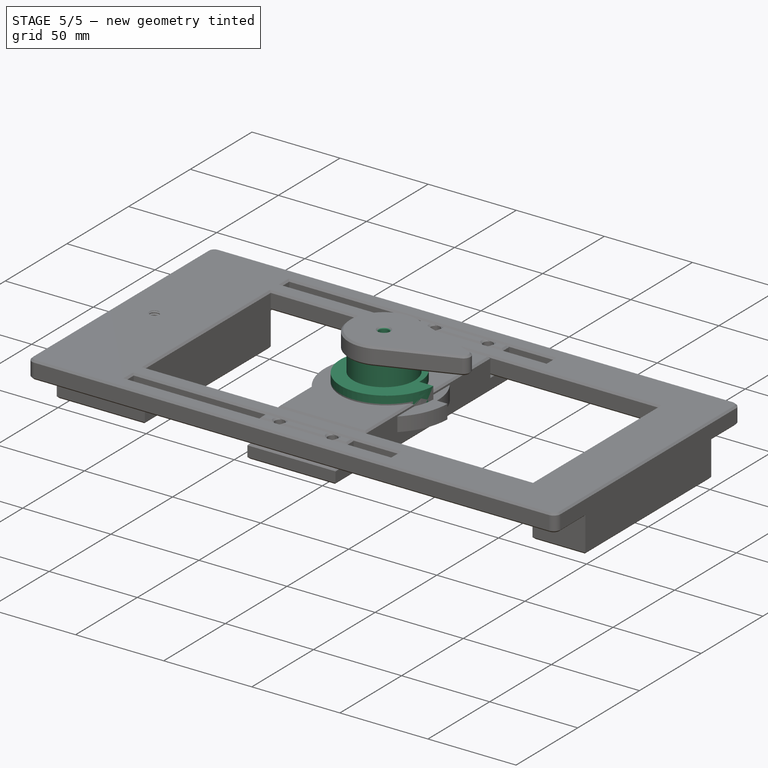
[diagram: stage 5 of 5 — iso view after this stage's code; geometry added in this stage tinted green]
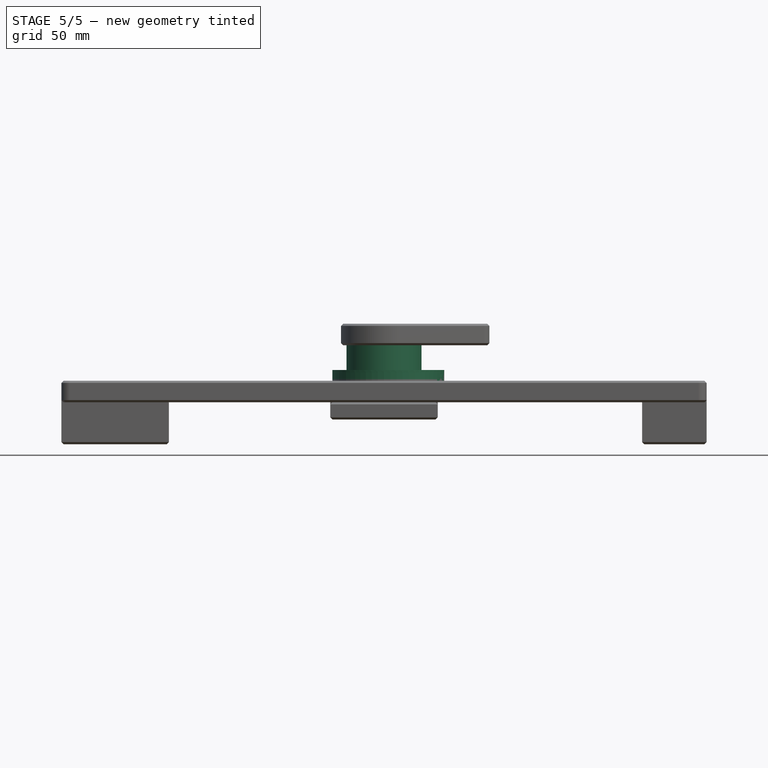
[diagram: stage 5 of 5 — front view after this stage's code; geometry added in this stage tinted green]
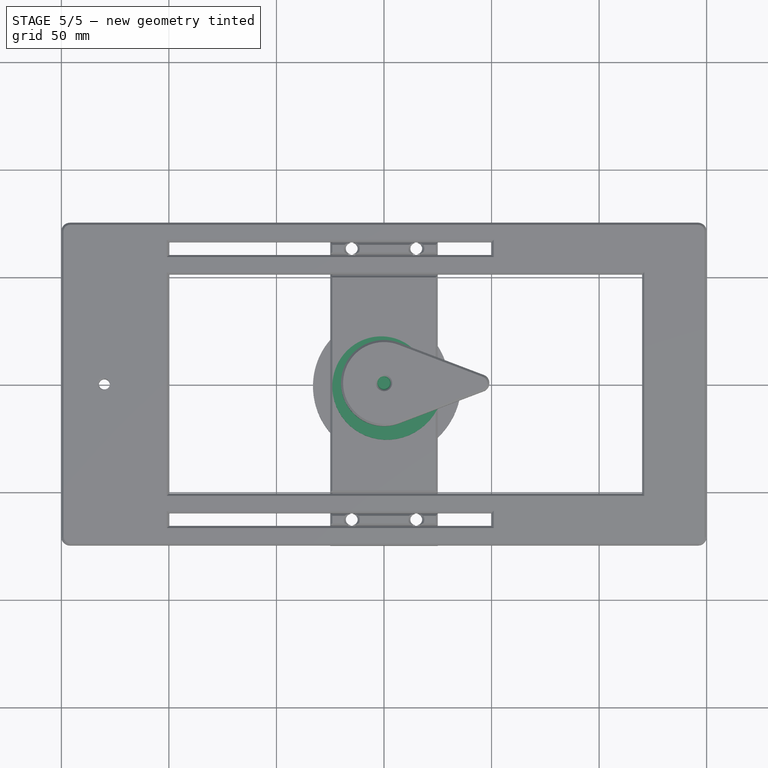
[diagram: stage 5 of 5 — top view after this stage's code; geometry added in this stage tinted green]
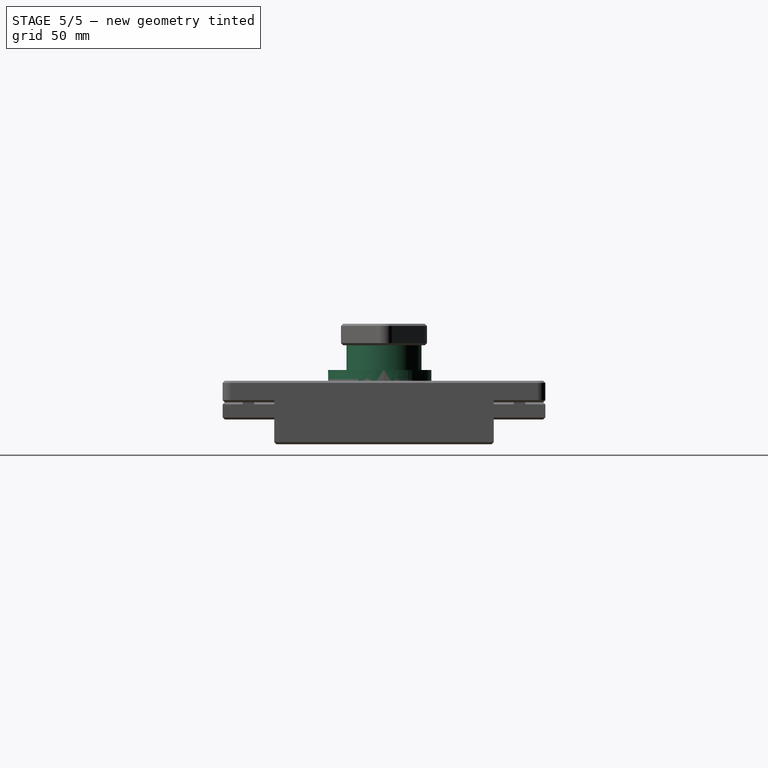
[diagram: stage 5 of 5 — right view after this stage's code; geometry added in this stage tinted green]
FEATURE [Sketcher::SketchObject] Sketch001
  FullyConstrained = false
  sketch-geometry (2):
    g0: BSplineCurve PolesCount=15 KnotsCount=2 Degree=14 IsPeriodic=0
    g1: LineSegment StartX=28 StartY=0 StartZ=0 EndX=20 EndY=0 EndZ=0
  constraints (3):
    c: Coincident(g1,g0)
    c: Coincident(g1,g0)
    c: Horizontal(g1)
FEATURE [PartDesign::Pad] Pad001
  Direction = (0,0,1)
  Length = 15
  Length2 = 10
  Profile = -> Sketch001
  ReferenceAxis = -> Sketch001 [N_Axis]
  Suppressed = false
  Type = 0
FEATURE [Sketcher::SketchObject] Sketch002
  FullyConstrained = true
  MapMode = 5
  Placement = pos=(0,0,15) rot=(0,0,1;0rad)
  Support = -> [Pad001]
  sketch-geometry (1):
    g0: Circle CenterX=0 CenterY=0 CenterZ=0 NormalX=0 NormalY=0 NormalZ=1 AngleXU=0 Radius=17.4625
  constraints (2):
    c: Coincident(g-1,g0)
    c: Diameter(g0) = 34.925
FEATURE [PartDesign::Pad] Pad002
  BaseFeature = -> Pad001
  Direction = (0,0,1)
  Length = 18.5
  Length2 = 10
  Profile = -> Sketch002
  ReferenceAxis = -> Sketch002 [N_Axis]
  Suppressed = false
  Type = 0
FEATURE [Sketcher::SketchObject] Sketch009
  FullyConstrained = true
  MapMode = 5
  Placement = pos=(0,0,36.5) rot=(0,0,1;0rad)
  Support = -> [Pad005]
  sketch-geometry (1):
    g0: Circle CenterX=0 CenterY=0 CenterZ=0 NormalX=0 NormalY=0 NormalZ=1 AngleXU=0 Radius=2.8
  constraints (2):
    c: Coincident(g0,g-1)
    c: Diameter(g0) = 5.6
FEATURE [PartDesign::Pocket] Pocket002
  BaseFeature = -> Pad005
  Direction = (0,0,-1)
  Length = 5
  Length2 = 5
  Profile = -> Sketch009
  ReferenceAxis = -> Sketch009 [N_Axis]
  Suppressed = false
  Type = 1
FEATURE [PartDesign::Chamfer] Chamfer
  Angle = 45
  Base = -> Pocket002 [Face5,Edge6,Face10]
  BaseFeature = -> Pocket002
  ChamferType = 0
  FlipDirection = false
  Size = 1
  Size2 = 1
  SupportTransform = false
  Suppressed = false
  UseAllEdges = false
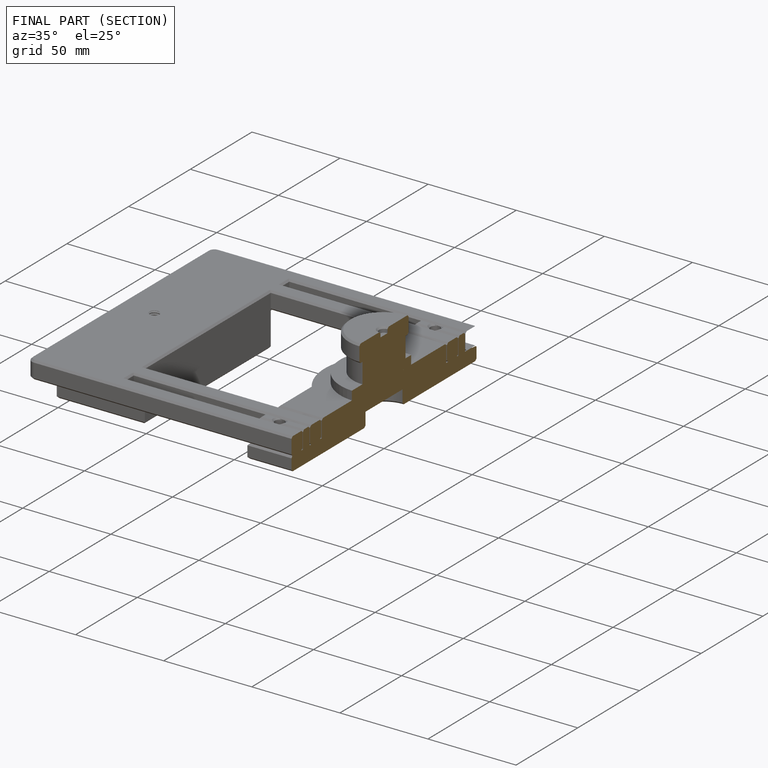
[diagram: finished part — half-section view (interior)]
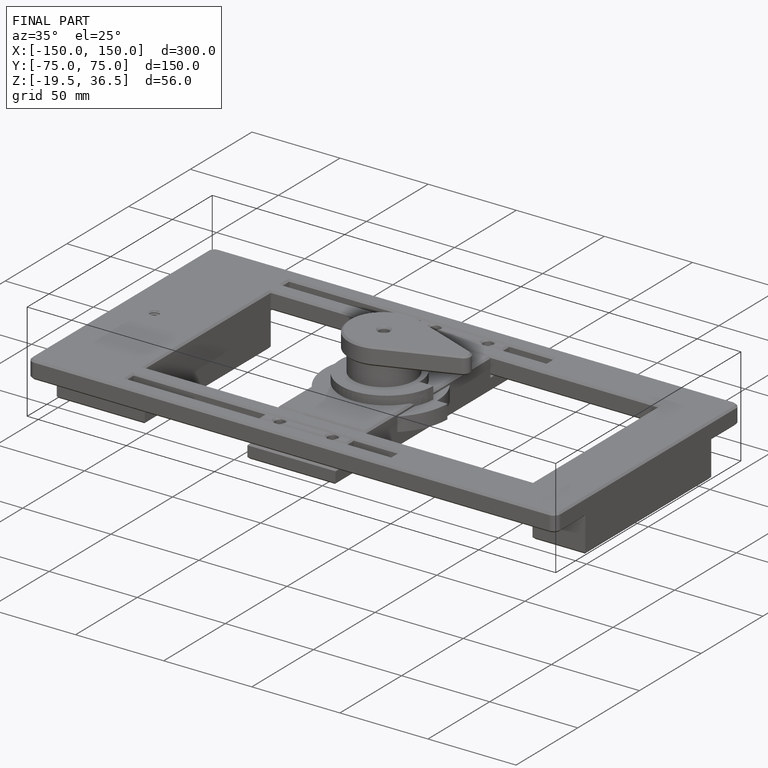
[diagram: finished part — iso view with bounding-box wireframe]
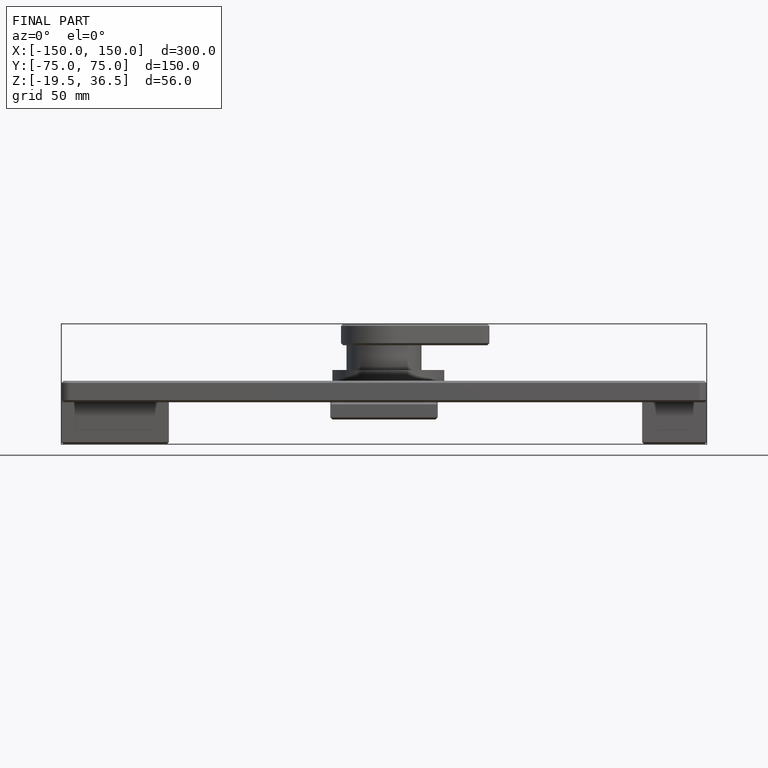
[diagram: finished part — front view with bounding-box wireframe]
